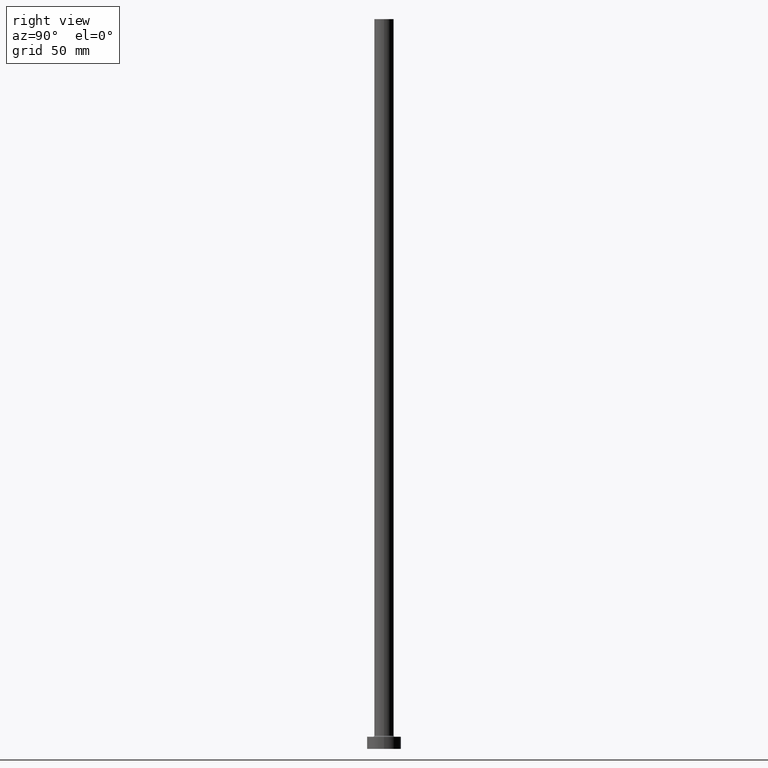
[diagram: clean part render]
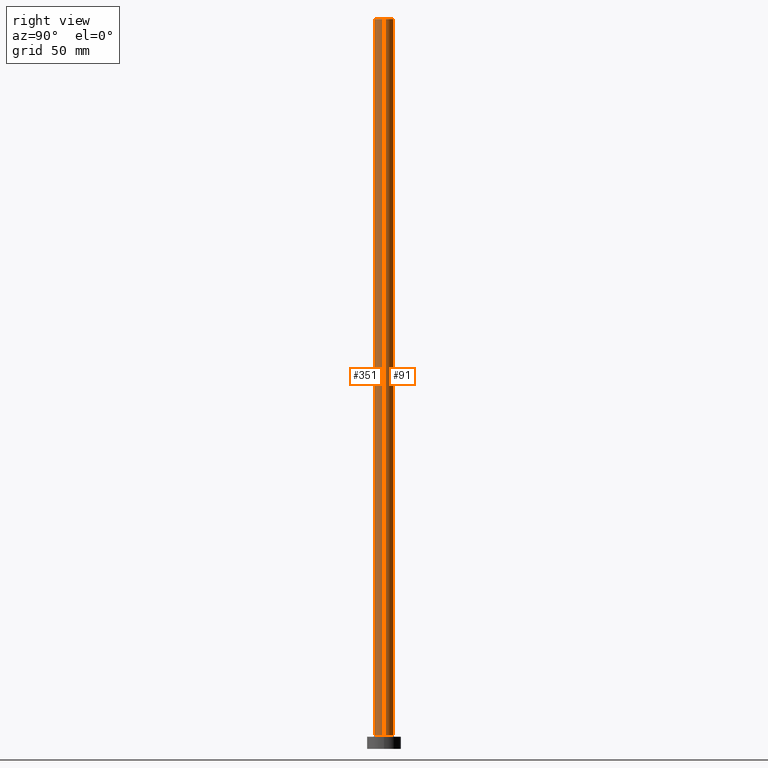
[diagram: same view with one multi-face feature highlighted, each face labeled with its STEP entity id]
A machine part, right view. The highlighted faces form ONE feature: a constant-radius fillet chain: 2 tangent blend faces with common blend radius 4 mm. The faces share edges in the B-rep.
Their STEP definitions:
[1] entity #91 (Cylinder):
#8 = EDGE_CURVE ( 'NONE', #417, #258, #18, .T. ) ;
#18 = CIRCLE ( 'NONE', #348, 4.000000000000000000 ) ;
#33 = CARTESIAN_POINT ( 'NONE',  ( 0.000000000000000000, 0.000000000000000000, 300.0000000000000000 ) ) ;
#36 = VECTOR ( 'NONE', #311, 1000.000000000000000 ) ;
#38 = EDGE_CURVE ( 'NONE', #242, #419, #445, .T. ) ;
#39 = DIRECTION ( 'NONE',  ( 1.000000000000000000, 0.000000000000000000, 0.000000000000000000 ) ) ;
#74 = DIRECTION ( 'NONE',  ( 0.000000000000000000, 0.000000000000000000, 1.000000000000000000 ) ) ;
#78 = CARTESIAN_POINT ( 'NONE',  ( 0.000000000000000000, 0.000000000000000000, 300.0000000000000000 ) ) ;
#87 = ORIENTED_EDGE ( 'NONE', *, *, #437, .T. ) ;
#91 = ADVANCED_FACE ( 'NONE', ( #141 ), #281, .T. ) ;
#97 = ORIENTED_EDGE ( 'NONE', *, *, #38, .F. ) ;
#98 = LINE ( 'NONE', #165, #36 ) ;
#127 = CARTESIAN_POINT ( 'NONE',  ( 4.000000000000000000, 4.898587196589412829E-16, 300.0000000000000000 ) ) ;
#132 = CARTESIAN_POINT ( 'NONE',  ( 4.000000000000000000, 4.898587196589412829E-16, 5.500000000000005329 ) ) ;
#140 = EDGE_LOOP ( 'NONE', ( #97, #87, #304, #451 ) ) ;
#141 = FACE_OUTER_BOUND ( 'NONE', #140, .T. ) ;
#146 = DIRECTION ( 'NONE',  ( -0.000000000000000000, -0.000000000000000000, -1.000000000000000000 ) ) ;
#165 = CARTESIAN_POINT ( 'NONE',  ( 4.000000000000000000, 4.898587196589412829E-16, 300.0000000000000000 ) ) ;
#175 = DIRECTION ( 'NONE',  ( 1.000000000000000000, 0.000000000000000000, 0.000000000000000000 ) ) ;
#206 = CARTESIAN_POINT ( 'NONE',  ( -4.000000000000000000, 0.000000000000000000, 300.0000000000000000 ) ) ;
#238 = VECTOR ( 'NONE', #347, 1000.000000000000000 ) ;
#242 = VERTEX_POINT ( 'NONE', #127 ) ;
#248 = CARTESIAN_POINT ( 'NONE',  ( 0.000000000000000000, 0.000000000000000000, 5.500000000000005329 ) ) ;
#258 = VERTEX_POINT ( 'NONE', #409 ) ;
#272 = CARTESIAN_POINT ( 'NONE',  ( -4.000000000000000000, 0.000000000000000000, 300.0000000000000000 ) ) ;
#278 = AXIS2_PLACEMENT_3D ( 'NONE', #33, #146, #317 ) ;
#281 = CYLINDRICAL_SURFACE ( 'NONE', #278, 4.000000000000000000 ) ;
#300 = LINE ( 'NONE', #206, #238 ) ;
#304 = ORIENTED_EDGE ( 'NONE', *, *, #8, .T. ) ;
#311 = DIRECTION ( 'NONE',  ( -0.000000000000000000, -0.000000000000000000, -1.000000000000000000 ) ) ;
#317 = DIRECTION ( 'NONE',  ( -1.000000000000000000, 0.000000000000000000, 0.000000000000000000 ) ) ;
#347 = DIRECTION ( 'NONE',  ( -0.000000000000000000, -0.000000000000000000, -1.000000000000000000 ) ) ;
#348 = AXIS2_PLACEMENT_3D ( 'NONE', #248, #395, #175 ) ;
#395 = DIRECTION ( 'NONE',  ( 0.000000000000000000, 0.000000000000000000, 1.000000000000000000 ) ) ;
#396 = AXIS2_PLACEMENT_3D ( 'NONE', #78, #74, #39 ) ;
#409 = CARTESIAN_POINT ( 'NONE',  ( -4.000000000000000000, 0.000000000000000000, 5.500000000000005329 ) ) ;
#417 = VERTEX_POINT ( 'NONE', #132 ) ;
#419 = VERTEX_POINT ( 'NONE', #272 ) ;
#433 = EDGE_CURVE ( 'NONE', #419, #258, #300, .T. ) ;
#437 = EDGE_CURVE ( 'NONE', #242, #417, #98, .T. ) ;
#445 = CIRCLE ( 'NONE', #396, 4.000000000000000000 ) ;
#451 = ORIENTED_EDGE ( 'NONE', *, *, #433, .F. ) ;
[2] entity #351 (Cylinder):
#30 = AXIS2_PLACEMENT_3D ( 'NONE', #52, #435, #405 ) ;
#36 = VECTOR ( 'NONE', #311, 1000.000000000000000 ) ;
#52 = CARTESIAN_POINT ( 'NONE',  ( 0.000000000000000000, 0.000000000000000000, 5.500000000000005329 ) ) ;
#98 = LINE ( 'NONE', #165, #36 ) ;
#101 = ORIENTED_EDGE ( 'NONE', *, *, #433, .T. ) ;
#127 = CARTESIAN_POINT ( 'NONE',  ( 4.000000000000000000, 4.898587196589412829E-16, 300.0000000000000000 ) ) ;
#132 = CARTESIAN_POINT ( 'NONE',  ( 4.000000000000000000, 4.898587196589412829E-16, 5.500000000000005329 ) ) ;
#162 = CARTESIAN_POINT ( 'NONE',  ( 0.000000000000000000, 0.000000000000000000, 300.0000000000000000 ) ) ;
#165 = CARTESIAN_POINT ( 'NONE',  ( 4.000000000000000000, 4.898587196589412829E-16, 300.0000000000000000 ) ) ;
#183 = AXIS2_PLACEMENT_3D ( 'NONE', #223, #288, #335 ) ;
#205 = EDGE_CURVE ( 'NONE', #258, #417, #323, .T. ) ;
#206 = CARTESIAN_POINT ( 'NONE',  ( -4.000000000000000000, 0.000000000000000000, 300.0000000000000000 ) ) ;
#218 = ORIENTED_EDGE ( 'NONE', *, *, #437, .F. ) ;
#223 = CARTESIAN_POINT ( 'NONE',  ( 0.000000000000000000, 0.000000000000000000, 300.0000000000000000 ) ) ;
#236 = DIRECTION ( 'NONE',  ( -1.000000000000000000, 0.000000000000000000, 0.000000000000000000 ) ) ;
#238 = VECTOR ( 'NONE', #347, 1000.000000000000000 ) ;
#242 = VERTEX_POINT ( 'NONE', #127 ) ;
#246 = EDGE_CURVE ( 'NONE', #419, #242, #309, .T. ) ;
#255 = AXIS2_PLACEMENT_3D ( 'NONE', #162, #307, #236 ) ;
#258 = VERTEX_POINT ( 'NONE', #409 ) ;
#272 = CARTESIAN_POINT ( 'NONE',  ( -4.000000000000000000, 0.000000000000000000, 300.0000000000000000 ) ) ;
#288 = DIRECTION ( 'NONE',  ( 0.000000000000000000, 0.000000000000000000, 1.000000000000000000 ) ) ;
#300 = LINE ( 'NONE', #206, #238 ) ;
#307 = DIRECTION ( 'NONE',  ( -0.000000000000000000, -0.000000000000000000, -1.000000000000000000 ) ) ;
#309 = CIRCLE ( 'NONE', #183, 4.000000000000000000 ) ;
#311 = DIRECTION ( 'NONE',  ( -0.000000000000000000, -0.000000000000000000, -1.000000000000000000 ) ) ;
#313 = ORIENTED_EDGE ( 'NONE', *, *, #246, .F. ) ;
#323 = CIRCLE ( 'NONE', #30, 4.000000000000000000 ) ;
#335 = DIRECTION ( 'NONE',  ( 1.000000000000000000, 0.000000000000000000, 0.000000000000000000 ) ) ;
#342 = EDGE_LOOP ( 'NONE', ( #218, #313, #101, #412 ) ) ;
#347 = DIRECTION ( 'NONE',  ( -0.000000000000000000, -0.000000000000000000, -1.000000000000000000 ) ) ;
#351 = ADVANCED_FACE ( 'NONE', ( #401 ), #418, .T. ) ;
#401 = FACE_OUTER_BOUND ( 'NONE', #342, .T. ) ;
#405 = DIRECTION ( 'NONE',  ( 1.000000000000000000, 0.000000000000000000, 0.000000000000000000 ) ) ;
#409 = CARTESIAN_POINT ( 'NONE',  ( -4.000000000000000000, 0.000000000000000000, 5.500000000000005329 ) ) ;
#412 = ORIENTED_EDGE ( 'NONE', *, *, #205, .T. ) ;
#417 = VERTEX_POINT ( 'NONE', #132 ) ;
#418 = CYLINDRICAL_SURFACE ( 'NONE', #255, 4.000000000000000000 ) ;
#419 = VERTEX_POINT ( 'NONE', #272 ) ;
#433 = EDGE_CURVE ( 'NONE', #419, #258, #300, .T. ) ;
#435 = DIRECTION ( 'NONE',  ( 0.000000000000000000, 0.000000000000000000, 1.000000000000000000 ) ) ;
#437 = EDGE_CURVE ( 'NONE', #242, #417, #98, .T. ) ;